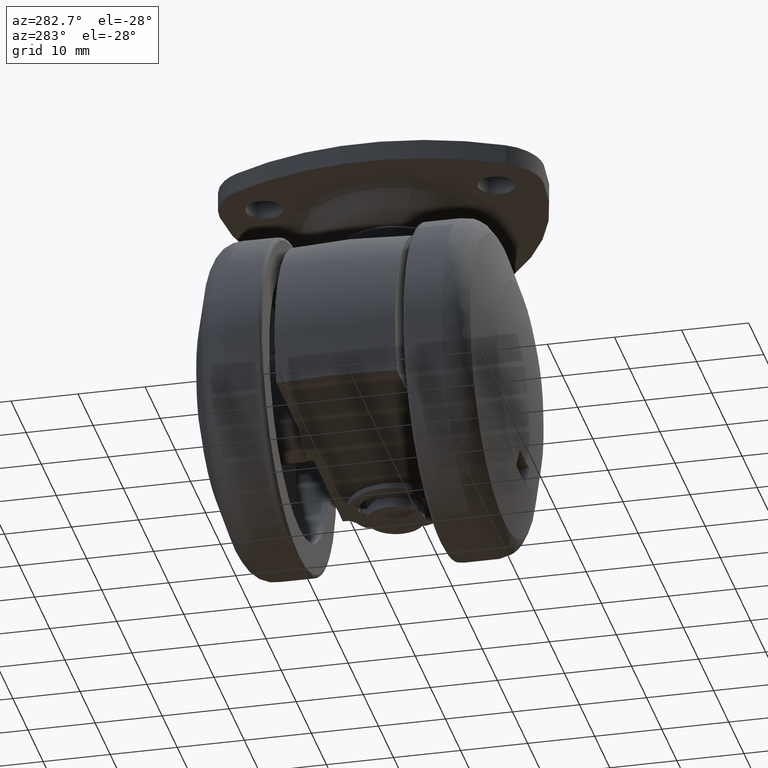
[diagram: clean part render]
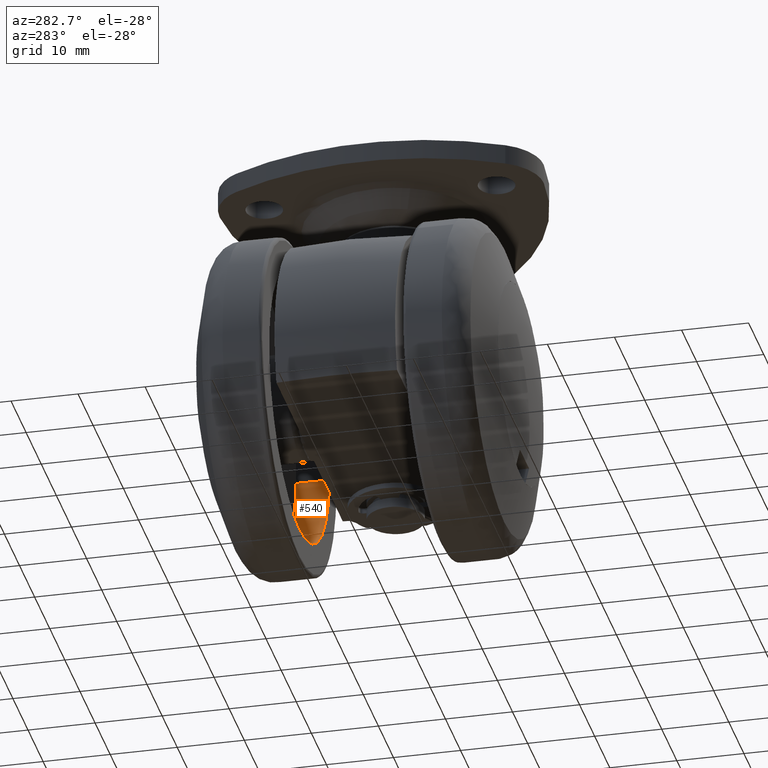
[diagram: same view with one face highlighted and labeled with its STEP entity id]
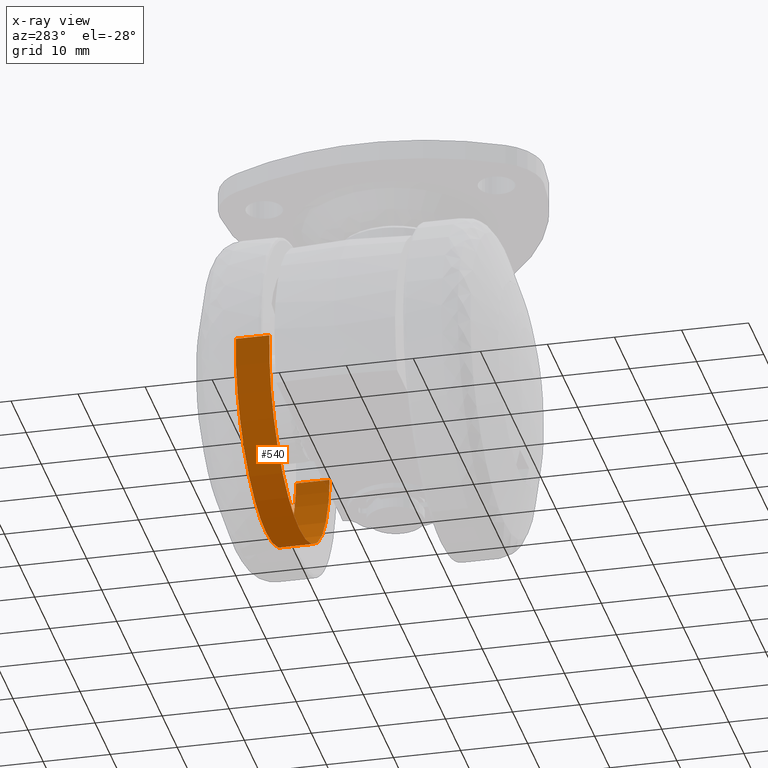
[diagram: x-ray of the same camera — body ghosted, the highlighted face saturated]
A machine part, auxiliary view. The second image highlights one B-rep face of the part: STEP entity #540.
The next image is the same camera in x-ray: the body ghosted, the highlighted face saturated — about 1% of this face is hidden behind the body in this view.
In plain terms, the highlighted face is a freeform B-spline surface patch.
Its self-contained STEP definition (entity closure, byte-faithful):
#442=CARTESIAN_POINT('',(19.938346674662551,10.374999999999989,-1.569181914556907));
#443=CARTESIAN_POINT('',(18.369164760105640,10.374999999999998,-21.507528589219461));
#444=CARTESIAN_POINT('',(-1.569181914556911,10.375000000000000,-19.938346674662551));
#445=CARTESIAN_POINT('',(-21.507528589219461,10.374999999999998,-18.369164760105640));
#446=CARTESIAN_POINT('',(-19.938346674662551,10.374999999999989,1.569181914556915));
#447=CARTESIAN_POINT('',(19.938346674662551,15.628125000000010,-1.569181914556905));
#448=CARTESIAN_POINT('',(18.369164760105640,15.628125000000024,-21.507528589219461));
#449=CARTESIAN_POINT('',(-1.569181914556911,15.628125000000020,-19.938346674662540));
#450=CARTESIAN_POINT('',(-21.507528589219461,15.628125000000024,-18.369164760105640));
#451=CARTESIAN_POINT('',(-19.938346674662551,15.628125000000010,1.569181914556917));
#459=(BOUNDED_SURFACE()B_SPLINE_SURFACE(2,1,((#442,#447),(#443,#448),(#444,#449),(#445,#450),(#446,#451)),.UNSPECIFIED.,.F.,.F.,.U.)B_SPLINE_SURFACE_WITH_KNOTS((3,2,3),(2,2),(0.0,33.137084989847587,66.274169979695188),(0.0,5.253125000000020),.UNSPECIFIED.)GEOMETRIC_REPRESENTATION_ITEM()RATIONAL_B_SPLINE_SURFACE(((1.0,1.0),(0.707106781186548,0.707106781186548),(1.0,1.0),(0.707106781186548,0.707106781186548),(1.0,1.0)))REPRESENTATION_ITEM('')SURFACE());
#460=CARTESIAN_POINT('',(0.0,10.500000000000000,-20.0));
#461=VERTEX_POINT('',#460);
#462=CARTESIAN_POINT('',(19.938347830738941,10.499999999999730,-1.569167225075318));
#463=VERTEX_POINT('',#462);
#464=CARTESIAN_POINT('',(0.0,10.500000000000000,-20.0));
#465=CARTESIAN_POINT('',(18.487823496091725,10.500000000000000,-19.999999999999996));
#466=CARTESIAN_POINT('',(19.938347830738945,10.499999999999732,-1.569167225075318));
#474=(BOUNDED_CURVE()B_SPLINE_CURVE(2,(#464,#465,#466),.UNSPECIFIED.,.F.,.U.)B_SPLINE_CURVE_WITH_KNOTS((3,3),(0.0,0.236331426928950),.UNSPECIFIED.)CURVE()GEOMETRIC_REPRESENTATION_ITEM()RATIONAL_B_SPLINE_CURVE((1.0,0.723120510640014,0.969723619742465))REPRESENTATION_ITEM(''));
#475=EDGE_CURVE('',#461,#463,#474,.T.);
#476=ORIENTED_EDGE('',*,*,#475,.T.);
#477=CARTESIAN_POINT('',(19.938347816798331,15.500000000000000,-1.569167402210918));
#478=VERTEX_POINT('',#477);
#479=CARTESIAN_POINT('',(19.938347830738941,10.499999999999730,-1.569167225075318));
#480=CARTESIAN_POINT('',(19.938347816798331,15.500000000000000,-1.569167402210918));
#481=QUASI_UNIFORM_CURVE('',1,(#479,#480),.UNSPECIFIED.,.F.,.U.);
#482=EDGE_CURVE('',#463,#478,#481,.T.);
#483=ORIENTED_EDGE('',*,*,#482,.T.);
#484=CARTESIAN_POINT('',(0.0,15.500000000000000,-19.999999999999989));
#485=VERTEX_POINT('',#484);
#486=CARTESIAN_POINT('',(0.0,15.500000000000000,-19.999999999999989));
#487=CARTESIAN_POINT('',(18.487823331334962,15.500000000000000,-19.999999999999989));
#488=CARTESIAN_POINT('',(19.938347816798331,15.500000000000004,-1.569167402210918));
#496=(BOUNDED_CURVE()B_SPLINE_CURVE(2,(#486,#487,#488),.UNSPECIFIED.,.F.,.U.)B_SPLINE_CURVE_WITH_KNOTS((3,3),(0.0,0.236331425405986),.UNSPECIFIED.)CURVE()GEOMETRIC_REPRESENTATION_ITEM()RATIONAL_B_SPLINE_CURVE((1.0,0.723120512424277,0.969723616564151))REPRESENTATION_ITEM(''));
#497=EDGE_CURVE('',#485,#478,#496,.T.);
#498=ORIENTED_EDGE('',*,*,#497,.F.);
#499=CARTESIAN_POINT('',(-19.938347816798331,15.500000000000000,1.569167402210931));
#500=VERTEX_POINT('',#499);
#501=CARTESIAN_POINT('',(-19.938347816798331,15.499999999999996,1.569167402210931));
#502=CARTESIAN_POINT('',(-20.0,15.500000000000004,0.785794850307327));
#503=CARTESIAN_POINT('',(-20.0,15.500000000000000,5.694420E-015));
#504=CARTESIAN_POINT('',(-19.999999999999996,15.500000000000004,-19.999999999999996));
#505=CARTESIAN_POINT('',(0.0,15.500000000000000,-19.999999999999989));
#513=(BOUNDED_CURVE()B_SPLINE_CURVE(2,(#501,#502,#503,#504,#505),.UNSPECIFIED.,.F.,.U.)B_SPLINE_CURVE_WITH_KNOTS((3,2,3),(0.736331425405986,0.750000000000000,1.0),.UNSPECIFIED.)CURVE()GEOMETRIC_REPRESENTATION_ITEM()RATIONAL_B_SPLINE_CURVE((0.969723616564151,0.983986268762270,1.0,0.707106781186548,1.0))REPRESENTATION_ITEM(''));
#514=EDGE_CURVE('',#500,#485,#513,.T.);
#515=ORIENTED_EDGE('',*,*,#514,.F.);
#516=CARTESIAN_POINT('',(-19.938347830738941,10.499999999999730,1.569167225075325));
#517=VERTEX_POINT('',#516);
#518=CARTESIAN_POINT('',(-19.938347830738941,10.499999999999730,1.569167225075325));
#519=CARTESIAN_POINT('',(-19.938347816798331,15.500000000000000,1.569167402210931));
#520=QUASI_UNIFORM_CURVE('',1,(#518,#519),.UNSPECIFIED.,.F.,.U.);
#521=EDGE_CURVE('',#517,#500,#520,.T.);
#522=ORIENTED_EDGE('',*,*,#521,.F.);
#523=CARTESIAN_POINT('',(-19.938347830738945,10.499999999999732,1.569167225075325));
#524=CARTESIAN_POINT('',(-20.0,10.499999999999998,0.785794761328518));
#525=CARTESIAN_POINT('',(-20.0,10.500000000000000,3.857510E-015));
#526=CARTESIAN_POINT('',(-19.999999999999996,10.500000000000002,-19.999999999999996));
#527=CARTESIAN_POINT('',(0.0,10.500000000000000,-20.0));
#535=(BOUNDED_CURVE()B_SPLINE_CURVE(2,(#523,#524,#525,#526,#527),.UNSPECIFIED.,.F.,.U.)B_SPLINE_CURVE_WITH_KNOTS((3,2,3),(0.736331426928950,0.750000000000000,1.0),.UNSPECIFIED.)CURVE()GEOMETRIC_REPRESENTATION_ITEM()RATIONAL_B_SPLINE_CURVE((0.969723619742465,0.983986270546533,1.0,0.707106781186548,1.0))REPRESENTATION_ITEM(''));
#536=EDGE_CURVE('',#517,#461,#535,.T.);
#537=ORIENTED_EDGE('',*,*,#536,.T.);
#538=EDGE_LOOP('',(#476,#483,#498,#515,#522,#537));
#539=FACE_OUTER_BOUND('',#538,.T.);
#540=ADVANCED_FACE('',(#539),#459,.F.);